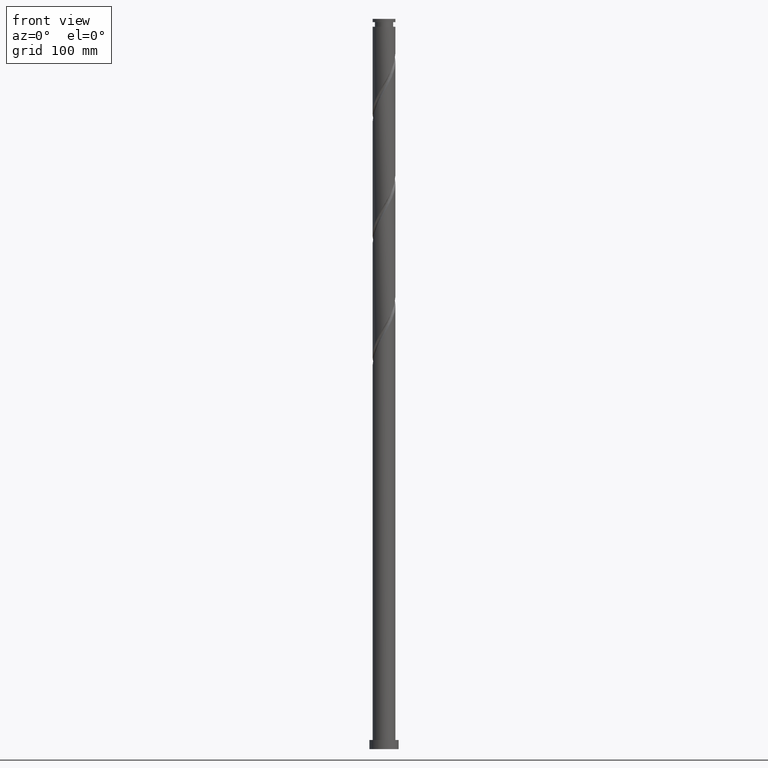
[diagram: clean part render]
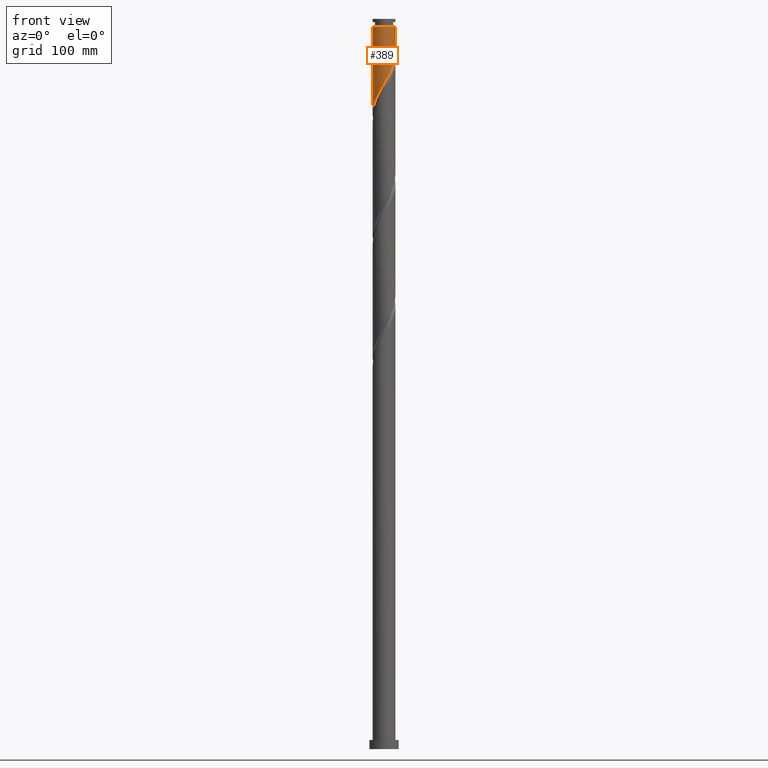
[diagram: same view with one face highlighted and labeled with its STEP entity id]
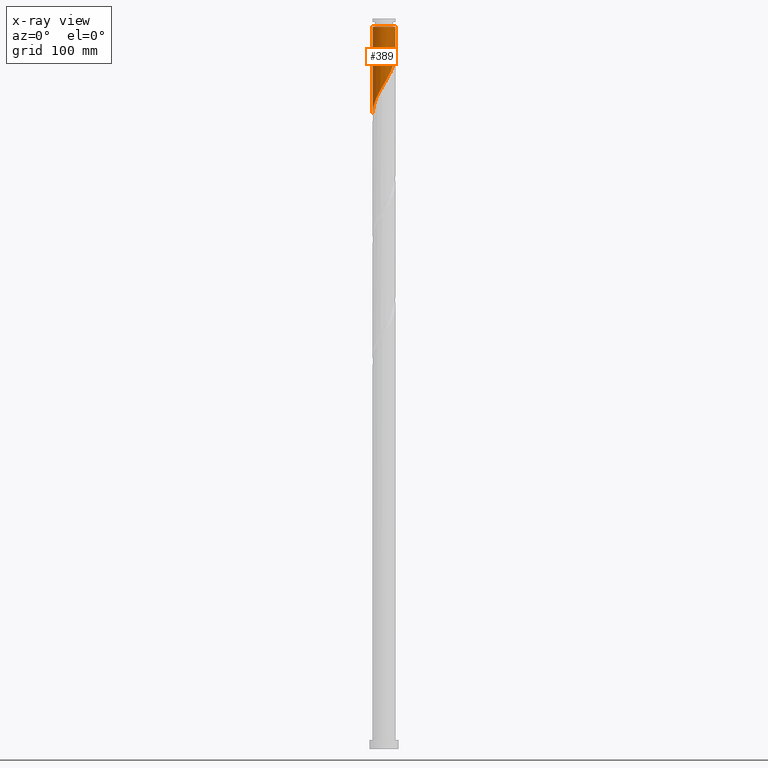
[diagram: x-ray of the same camera — body ghosted, the highlighted face saturated]
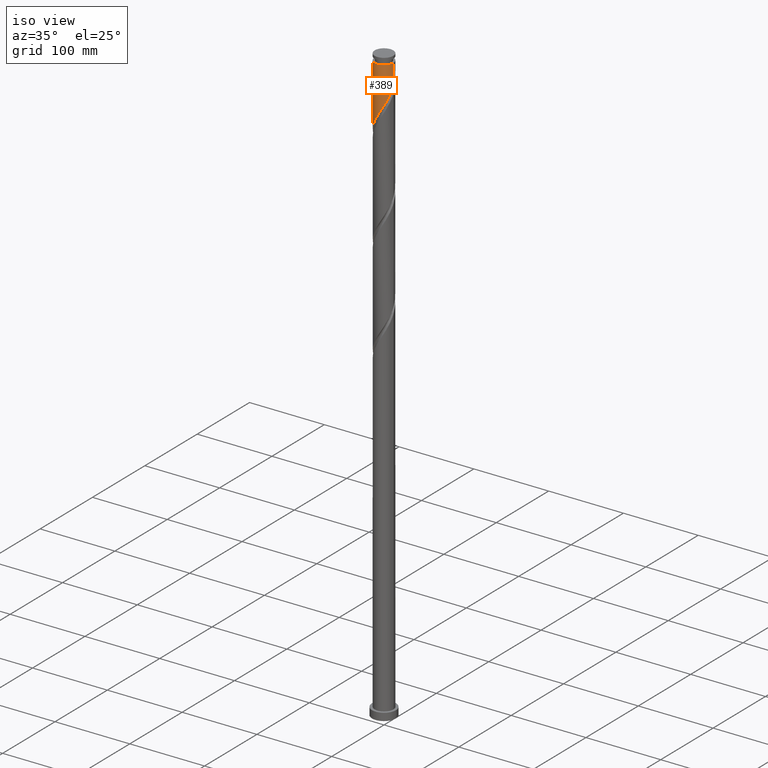
[diagram: same view with one face highlighted and labeled with its STEP entity id]
A machine part, front view. The second image highlights one B-rep face of the part: STEP entity #389.
The next image is the same camera in x-ray: the body ghosted, the highlighted face saturated — about 0% of this face is hidden behind the body in this view.
A second angle (iso view) of the same face is appended — the face is thin or edge-on in the first view.
In plain terms, the highlighted cylindrical surface (edge-blend (fillet) strip) has radius 12.5 mm, axis along (-0, -0, -1).
Its self-contained STEP definition (entity closure, byte-faithful):
#33 = CARTESIAN_POINT ( 'NONE',  ( -0.4372590323955716785, -12.49234984054595721, 728.2513746772591503 ) ) ;
#44 = DIRECTION ( 'NONE',  ( -0.000000000000000000, -0.000000000000000000, -1.000000000000000000 ) ) ;
#45 = CARTESIAN_POINT ( 'NONE',  ( 10.81552197002327631, -6.351954325404534529, 751.0583922211188792 ) ) ;
#56 = CARTESIAN_POINT ( 'NONE',  ( -12.50000000000000000, 0.000000000000000000, 800.0000000000000000 ) ) ;
#67 = CARTESIAN_POINT ( 'NONE',  ( 5.561143498045096223, -11.19480607219932189, 738.7776904667330200 ) ) ;
#77 = CARTESIAN_POINT ( 'NONE',  ( 2.651869041106358349, -12.25929972816160785, 733.5145325719960283 ) ) ;
#186 = CIRCLE ( 'NONE', #1532, 12.49999999999991829 ) ;
#195 = DIRECTION ( 'NONE',  ( -0.000000000000000000, -0.000000000000000000, -1.000000000000000000 ) ) ;
#206 = CARTESIAN_POINT ( 'NONE',  ( -7.223397906210956343, -10.25404124843609033, 715.9706729228731774 ) ) ;
#212 = EDGE_CURVE ( 'NONE', #1163, #1080, #1068, .T. ) ;
#215 = CARTESIAN_POINT ( 'NONE',  ( 12.00274651105806001, -3.490569608428352844, 756.3215501158558709 ) ) ;
#228 = CARTESIAN_POINT ( 'NONE',  ( -12.50000000000000000, 1.197282747073023809E-14, 695.6612016148903876 ) ) ;
#389 = ADVANCED_FACE ( 'NONE', ( #1793 ), #771, .T. ) ;
#392 = CARTESIAN_POINT ( 'NONE',  ( -2.487468592766562292, -12.25000000000000000, 724.7426027474347165 ) ) ;
#404 = DIRECTION ( 'NONE',  ( -1.000000000000000000, 0.000000000000000000, 0.000000000000000000 ) ) ;
#423 = CARTESIAN_POINT ( 'NONE',  ( 12.41357356760535069, -1.467375644356205822, 759.8303220456804183 ) ) ;
#434 = CARTESIAN_POINT ( 'NONE',  ( -12.48579069699953337, -0.5958445021311531420, 696.6724273088382233 ) ) ;
#566 = EDGE_CURVE ( 'NONE', #802, #672, #1802, .T. ) ;
#582 = CARTESIAN_POINT ( 'NONE',  ( -10.69733454362446956, -6.466609131668519694, 707.1987430983117520 ) ) ;
#595 = CARTESIAN_POINT ( 'NONE',  ( -11.23317305332022364, -5.580202719457602711, 705.4443571333995351 ) ) ;
#607 = CARTESIAN_POINT ( 'NONE',  ( 7.327901267867249047, -10.12678937316213634, 742.2864623965574538 ) ) ;
#619 = CARTESIAN_POINT ( 'NONE',  ( -9.487067962851766012, -8.139136408012319635, 710.7075150281366405 ) ) ;
#672 = VERTEX_POINT ( 'NONE', #901 ) ;
#771 = CYLINDRICAL_SURFACE ( 'NONE', #1979, 12.50000000000000000 ) ;
#781 = CARTESIAN_POINT ( 'NONE',  ( 0.5978865879535224526, -12.52858215697318478, 730.0057606421718219 ) ) ;
#793 = CARTESIAN_POINT ( 'NONE',  ( -12.49999999999991829, 0.000000000000000000, 791.4092694141013453 ) ) ;
#802 = VERTEX_POINT ( 'NONE', #1448 ) ;
#805 = CARTESIAN_POINT ( 'NONE',  ( -1.472404652744671472, -12.45611752411871898, 726.4969887123471608 ) ) ;
#814 = EDGE_CURVE ( 'NONE', #802, #1163, #186, .T. ) ;
#901 = CARTESIAN_POINT ( 'NONE',  ( 12.49999999999999822, 6.270059273948503140E-16, 762.3278682815571301 ) ) ;
#948 = CARTESIAN_POINT ( 'NONE',  ( 4.633515419724467677, -11.65561556037505753, 737.0233045018206894 ) ) ;
#957 = CARTESIAN_POINT ( 'NONE',  ( 8.167030959368787535, -9.519582162300682882, 744.0408483614695569 ) ) ;
#979 = CARTESIAN_POINT ( 'NONE',  ( -11.99843839451383509, -3.655176511351794666, 701.9355852035751013 ) ) ;
#989 = EDGE_CURVE ( 'NONE', #672, #1080, #1489, .T. ) ;
#1068 = LINE ( 'NONE', #56, #1781 ) ;
#1080 = VERTEX_POINT ( 'NONE', #228 ) ;
#1123 = CARTESIAN_POINT ( 'NONE',  ( -12.21742800420674335, -2.642811563851064971, 700.1811992386629981 ) ) ;
#1142 = CARTESIAN_POINT ( 'NONE',  ( 12.50000000000000000, -0.7362330219178989665, 761.0773411673716282 ) ) ;
#1144 = VECTOR ( 'NONE', #2000, 1000.000000000000000 ) ;
#1153 = CARTESIAN_POINT ( 'NONE',  ( -12.43641761389964451, -1.630446616350340827, 698.4268132737506676 ) ) ;
#1163 = VERTEX_POINT ( 'NONE', #793 ) ;
#1165 = CARTESIAN_POINT ( 'NONE',  ( 9.622515027661041387, -8.045498354888836801, 747.5496202912943318 ) ) ;
#1191 = ORIENTED_EDGE ( 'NONE', *, *, #212, .T. ) ;
#1254 = CARTESIAN_POINT ( 'NONE',  ( 0.000000000000000000, 0.000000000000000000, 791.4092694141013453 ) ) ;
#1325 = CARTESIAN_POINT ( 'NONE',  ( -4.469826494273550388, -11.67350209282074225, 721.2338308176101691 ) ) ;
#1334 = CARTESIAN_POINT ( 'NONE',  ( 6.488771576365717664, -10.73399658402358092, 740.5320764316453506 ) ) ;
#1349 = CARTESIAN_POINT ( 'NONE',  ( -11.61580572391702937, -4.617689615404697356, 703.6899711684874319 ) ) ;
#1411 = ORIENTED_EDGE ( 'NONE', *, *, #989, .F. ) ;
#1448 = CARTESIAN_POINT ( 'NONE',  ( 12.49999999999991829, 1.530808498934186196E-15, 791.4092694141013453 ) ) ;
#1481 = DIRECTION ( 'NONE',  ( -1.000000000000000000, 0.000000000000000000, 0.000000000000000000 ) ) ;
#1489 =( BOUNDED_CURVE ( )  B_SPLINE_CURVE ( 2, ( #2067, #1142, #423, #2241, #215, #1690, #1703, #45, #2217, #1165, #1856, #957, #607, #1334, #67, #948, #1680, #77, #2254, #781, #33, #805, #392, #2075, #1325, #1509, #2231, #206, #1530, #1868, #619, #2055, #582, #595, #1349, #979, #1123, #1153, #434, #1892, #2045 ),
 .UNSPECIFIED., .F., .T. ) 
 B_SPLINE_CURVE_WITH_KNOTS ( ( 3, 2, 2, 2, 2, 2, 2, 2, 2, 2, 2, 2, 2, 2, 2, 2, 2, 2, 2, 2, 3 ),
 ( 0.3045295809515953245, 0.3092105263157894912, 0.3157894736842105088, 0.3223684210526315819, 0.3289473684210526550, 0.3355263157894736725, 0.3421052631578947456, 0.3486842105263157632, 0.3552631578947368363, 0.3618421052631579093, 0.3684210526315789269, 0.3750000000000000000, 0.3815789473684210731, 0.3881578947368420907, 0.3947368421052631637, 0.4013157894736842368, 0.4078947368421052544, 0.4144736842105263275, 0.4210526315789473450, 0.4276315789473684181, 0.4295295809515953800 ),
 .UNSPECIFIED. ) 
 CURVE ( )  GEOMETRIC_REPRESENTATION_ITEM ( )  RATIONAL_B_SPLINE_CURVE ( ( 0.9078162034606067632, 0.9068816855934138665, 0.9090909090909354839, 0.9059859027333625470, 0.9090909090909354839, 0.9059859027333625470, 0.9090909090909354839, 0.9059859027333625470, 0.9090909090909354839, 0.9059859027333625470, 0.9090909090909354839, 0.9059859027333625470, 0.9090909090909354839, 0.9059859027333625470, 0.9090909090909354839, 0.9059859027333625470, 0.9090909090909354839, 0.9059859027333625470, 0.9090909090909354839, 0.9059859027333625470, 0.9090909090909354839, 0.9059859027333625470, 0.9090909090909354839, 0.9059859027333625470, 0.9090909090909354839, 0.9059859027333625470, 0.9090909090909354839, 0.9059859027333625470, 0.9090909090909354839, 0.9059859027333625470, 0.9090909090909354839, 0.9059859027333625470, 0.9090909090909354839, 0.9059859027333625470, 0.9090909090909354839, 0.9059859027333625470, 0.9090909090909354839, 0.9059859027333625470, 0.9090909090909354839, 0.9081951262308842754, 0.9078162034606067632 ) ) 
 REPRESENTATION_ITEM ( '' )  );
#1499 = CARTESIAN_POINT ( 'NONE',  ( 0.000000000000000000, 0.000000000000000000, 800.0000000000000000 ) ) ;
#1509 = CARTESIAN_POINT ( 'NONE',  ( -5.437120455758652326, -11.30312170976020347, 719.4794448526979522 ) ) ;
#1530 = CARTESIAN_POINT ( 'NONE',  ( -8.018018898992885113, -9.589649260290647348, 714.2162869579611879 ) ) ;
#1532 = AXIS2_PLACEMENT_3D ( 'NONE', #1254, #195, #1481 ) ;
#1680 = CARTESIAN_POINT ( 'NONE',  ( 3.642692230415415011, -11.95745764426833446, 735.2689185369085862 ) ) ;
#1690 = CARTESIAN_POINT ( 'NONE',  ( 11.71350966700483553, -4.485145540232325700, 754.5671641509436540 ) ) ;
#1703 = CARTESIAN_POINT ( 'NONE',  ( 11.26451581851405770, -5.418549932818423898, 752.8127781860315508 ) ) ;
#1781 = VECTOR ( 'NONE', #44, 1000.000000000000000 ) ;
#1793 = FACE_OUTER_BOUND ( 'NONE', #2032, .T. ) ;
#1802 = LINE ( 'NONE', #2023, #1144 ) ;
#1856 = CARTESIAN_POINT ( 'NONE',  ( 8.894772993514918014, -8.782540258594758953, 745.7952343263822286 ) ) ;
#1868 = CARTESIAN_POINT ( 'NONE',  ( -8.812639891774814771, -8.925257272145200815, 712.4619009930487437 ) ) ;
#1892 = CARTESIAN_POINT ( 'NONE',  ( -12.49999999999999645, -0.2980916780646182818, 696.1675246333305722 ) ) ;
#1979 = AXIS2_PLACEMENT_3D ( 'NONE', #1499, #2222, #404 ) ;
#2000 = DIRECTION ( 'NONE',  ( -0.000000000000000000, -0.000000000000000000, -1.000000000000000000 ) ) ;
#2023 = CARTESIAN_POINT ( 'NONE',  ( 12.50000000000000000, 1.530808498934191127E-15, 800.0000000000000000 ) ) ;
#2032 = EDGE_LOOP ( 'NONE', ( #2136, #2220, #1191, #1411 ) ) ;
#2045 = CARTESIAN_POINT ( 'NONE',  ( -12.50000000000000000, 1.197282747073023809E-14, 695.6612016148903876 ) ) ;
#2055 = CARTESIAN_POINT ( 'NONE',  ( -10.16149603392870837, -7.353015543879440230, 708.9531290632241962 ) ) ;
#2067 = CARTESIAN_POINT ( 'NONE',  ( 12.49999999999999822, 6.270059273948503140E-16, 762.3278682815571301 ) ) ;
#2075 = CARTESIAN_POINT ( 'NONE',  ( -3.502532532788456887, -12.04388247588127570, 722.9882167825223860 ) ) ;
#2136 = ORIENTED_EDGE ( 'NONE', *, *, #566, .F. ) ;
#2217 = CARTESIAN_POINT ( 'NONE',  ( 10.21901849884216062, -7.198726340146687441, 749.3040062562065486 ) ) ;
#2220 = ORIENTED_EDGE ( 'NONE', *, *, #814, .T. ) ;
#2222 = DIRECTION ( 'NONE',  ( -0.000000000000000000, -0.000000000000000000, -1.000000000000000000 ) ) ;
#2231 = CARTESIAN_POINT ( 'NONE',  ( -6.330259180984801226, -10.77858147909814868, 717.7250588877855080 ) ) ;
#2241 = CARTESIAN_POINT ( 'NONE',  ( 12.29198335511128093, -2.495993676624380875, 758.0759360807680878 ) ) ;
#2254 = CARTESIAN_POINT ( 'NONE',  ( 1.624877814529943620, -12.39394094256739898, 731.7601466070839251 ) ) ;